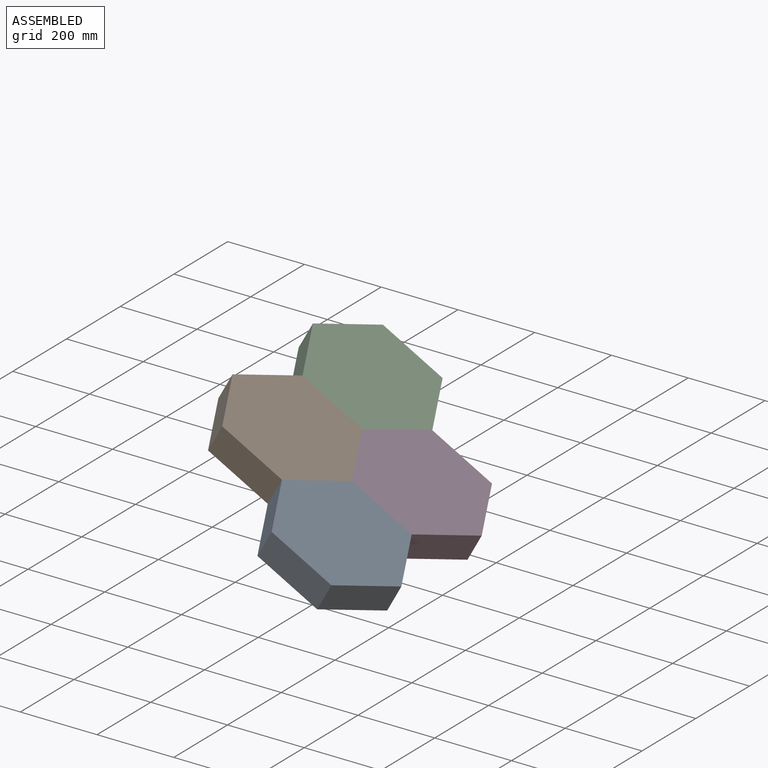
[diagram: assembled view]
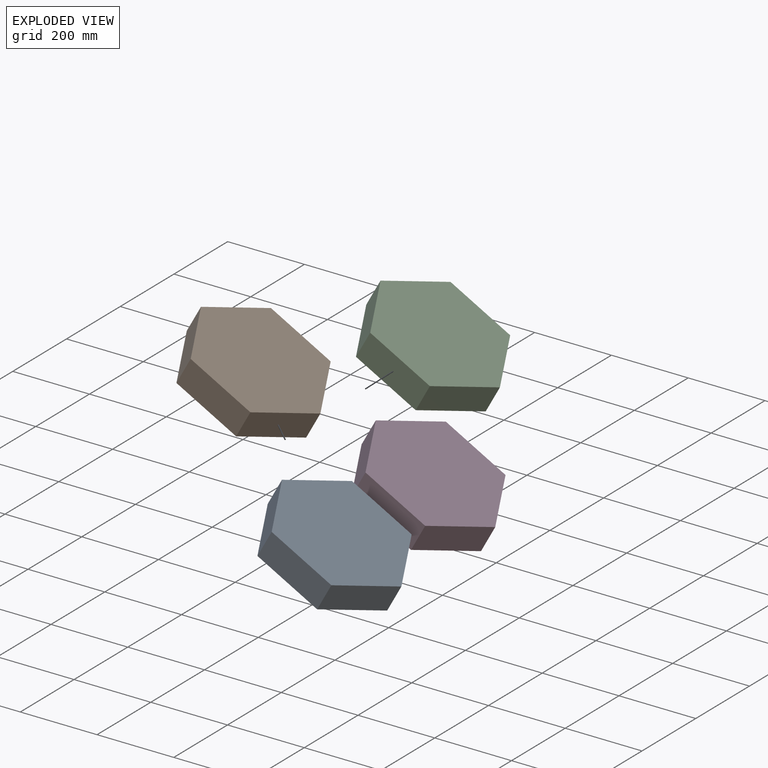
[diagram: exploded view]
GUIDED TOUR — MATED ASSEMBLY (Onshape document 0dcf16d9afe4eb14ad76084d, AutoMate assembly 0dcf16d9afe4eb14ad76084d_eabbf6c5362d463b5edfe98a_f4b00014ea0a3289594aee3d_default)

This assembly has 4 components, labeled P0..P3 below (a component is one placed occurrence of a part; the same part can appear more than once), held together by 3 mates. A mate is a constraint between two components; its type names the relative motion it leaves free:
  FASTENED — locks the two components together rigidly (no relative motion).
Axis/direction vectors are unit vectors and 'through' points are millimeter coordinates, both in the assembly's world frame.

MATES
  1. FASTENED "Fastened 2": P1 <-> P0, direction (0.763, -0.487, -0.425) through (379.78, -378.99, 186.70) mm
  2. FASTENED "Fastened 1": P3 <-> P0, direction (0.013, -1.000, -0.007) through (494.04, -300.78, 123.04) mm
  3. FASTENED "Fastened 3": P1 <-> P2, direction (-0.013, 1.000, 0.007) through (261.44, -152.44, 252.63) mm

ASSEMBLY ORDER
  1. P2 — the base component [order verified]
  2. P1 [order verified]
  3. P3 [order verified]
  4. P0 [order verified]
Order-tag legend:
  [order verified] — this step's position reverses a verified removal order: the component was checked to insert without passing through the ones already placed.

Of the 4 components, 4 carry the full construction recipe — the FeatureScript program that regenerates the part's solid from scratch; the rest are supplied as boundary geometry only.
Each toured component is shown spotlighted twice — in the assembled view, then in the exploded view, where a leader line traces a displaced component back to its assembled socket (saturated green if recipe-attached, orange if geometry-only; every other component desaturated gray) — followed by its recipe or geometry summary and the mates that hold it.
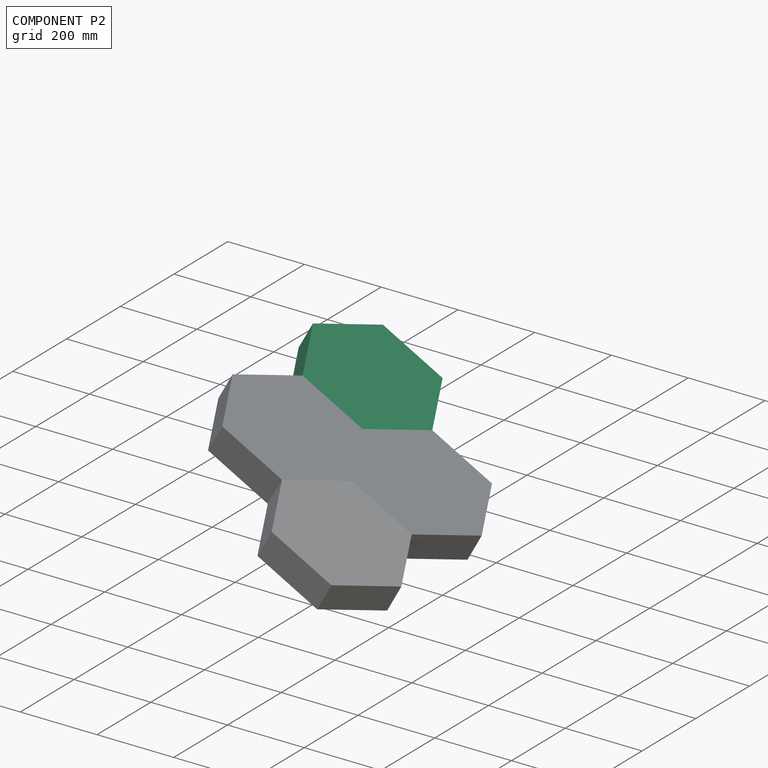
[diagram: component P2 — assembled]
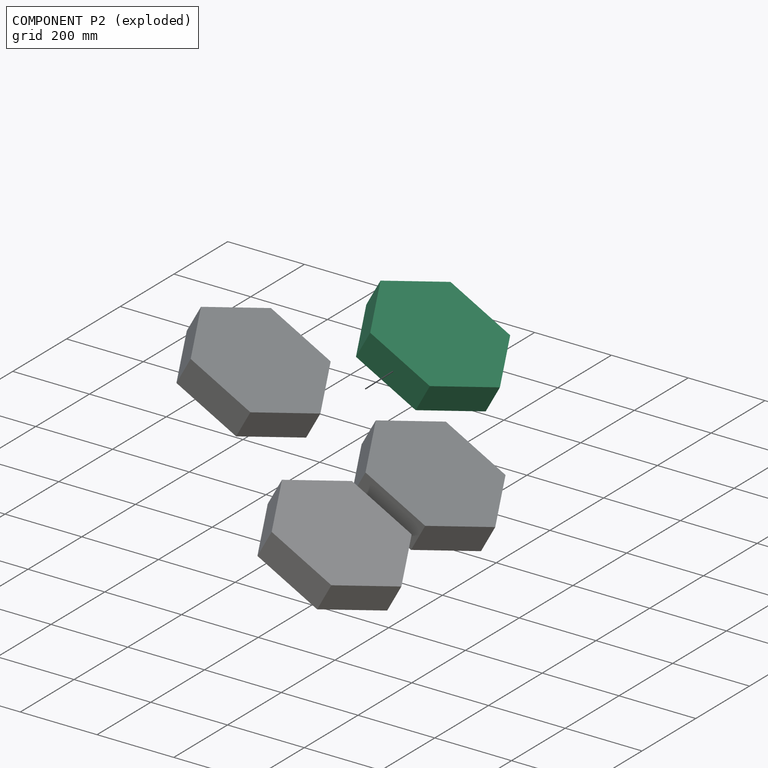
[diagram: component P2 — exploded]
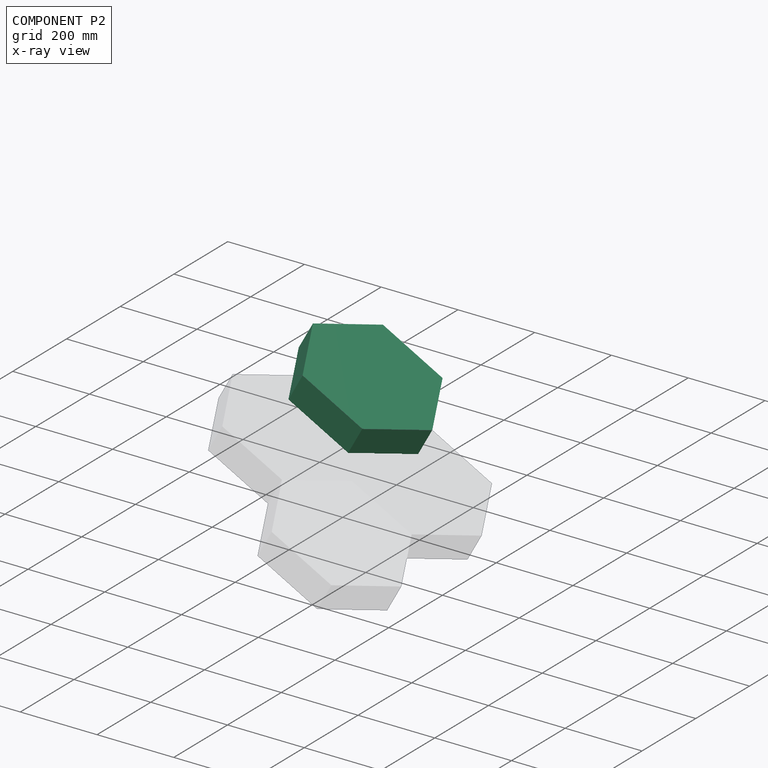
[diagram: component P2 — x-ray view]
COMPONENT P2 — same part as P0 (CADFS 00362060); its construction recipe is shown at P0.
Held by: FASTENED mate "Fastened 3" to P1.
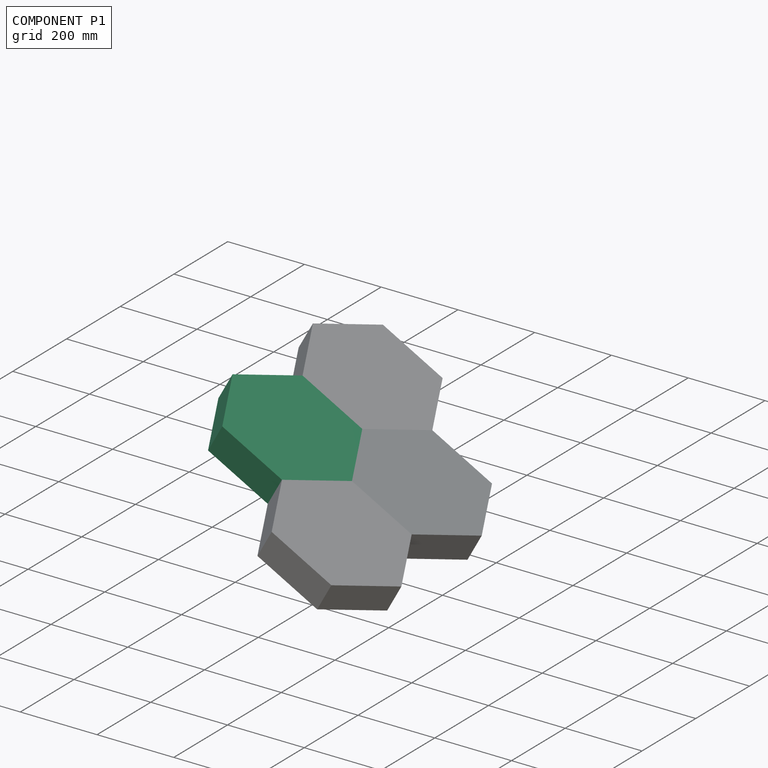
[diagram: component P1 — assembled]
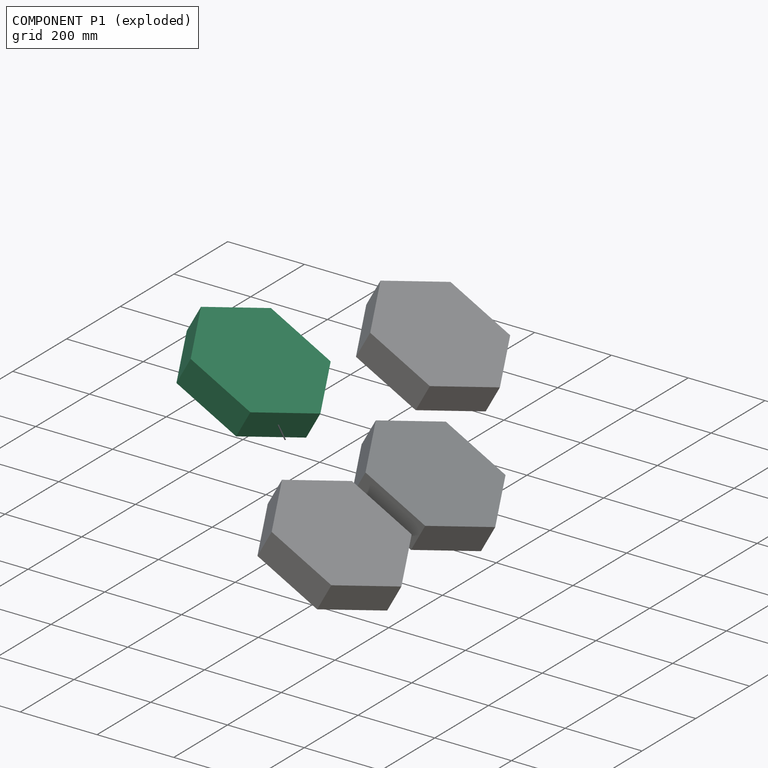
[diagram: component P1 — exploded]
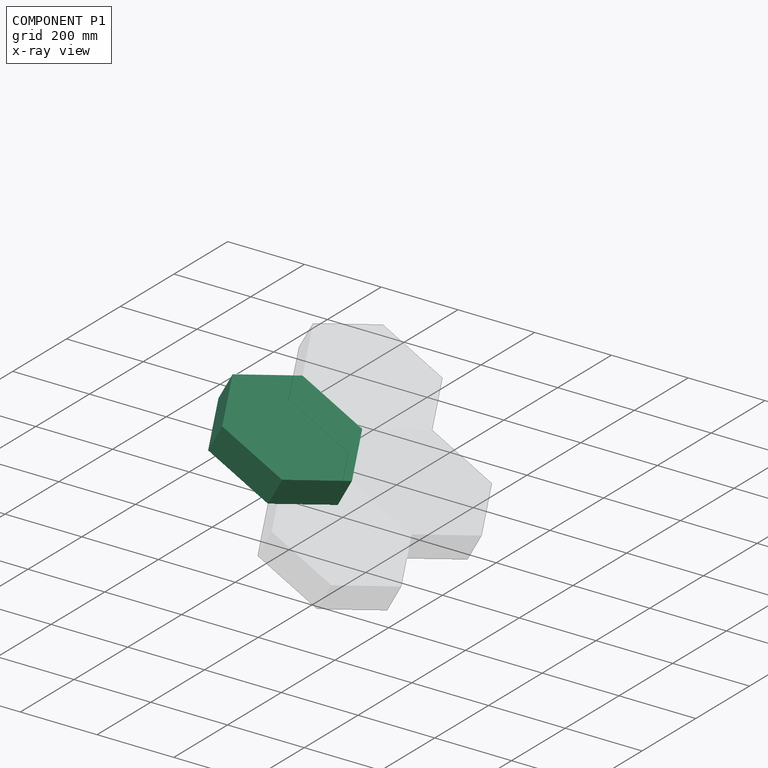
[diagram: component P1 — x-ray view]
COMPONENT P1 — same part as P0 (CADFS 00362060); its construction recipe is shown at P0.
Held by: FASTENED mate "Fastened 2" to P0; FASTENED mate "Fastened 3" to P2.
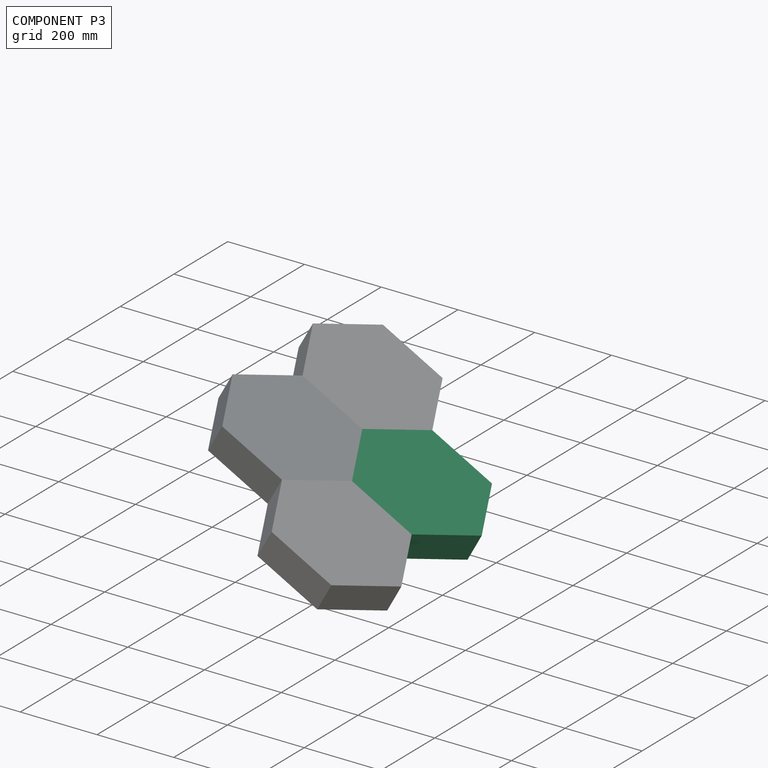
[diagram: component P3 — assembled]
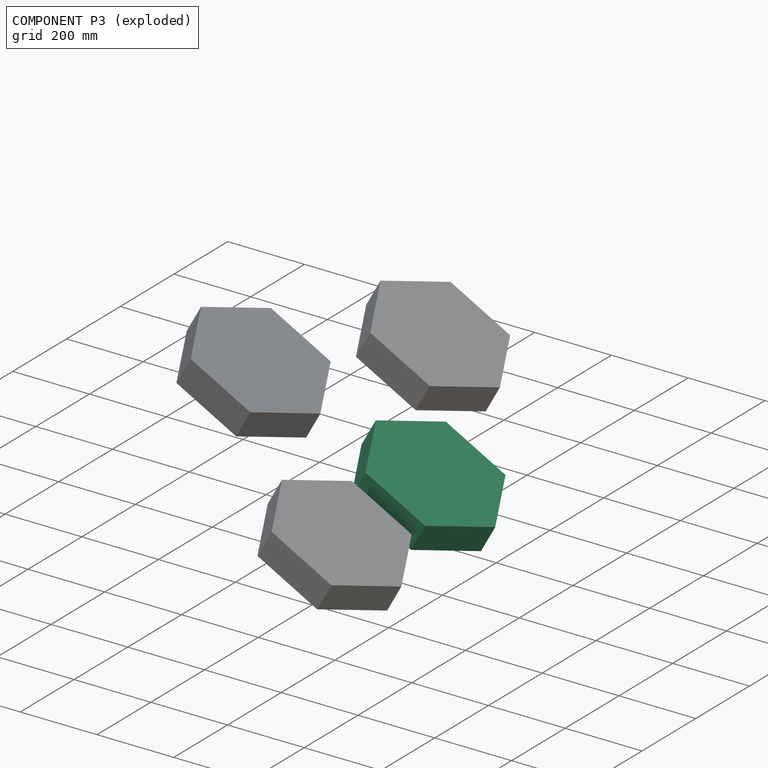
[diagram: component P3 — exploded]
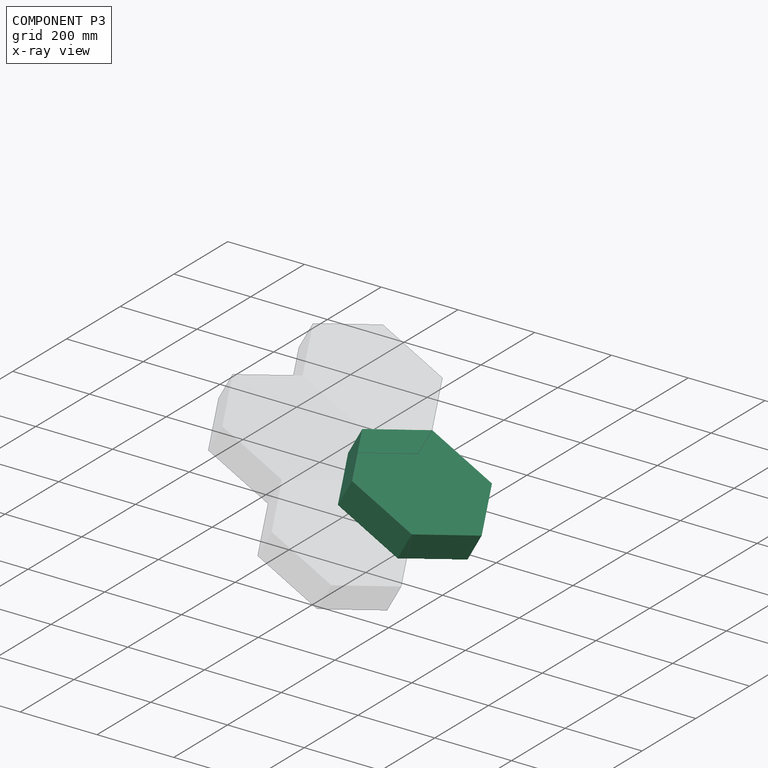
[diagram: component P3 — x-ray view]
COMPONENT P3 — same part as P0 (CADFS 00362060); its construction recipe is shown at P0.
Held by: FASTENED mate "Fastened 1" to P0.
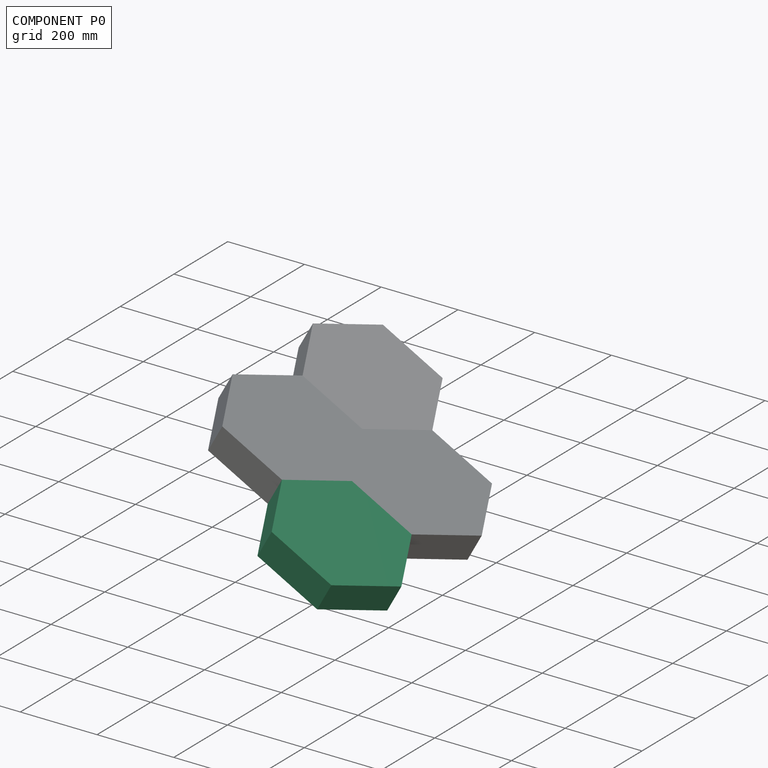
[diagram: component P0 — assembled]
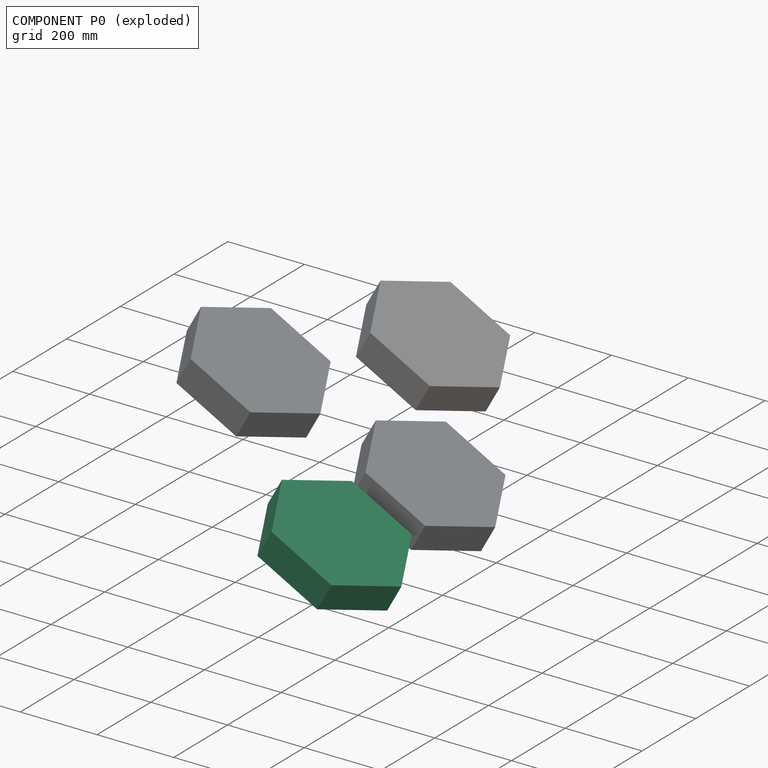
[diagram: component P0 — exploded]
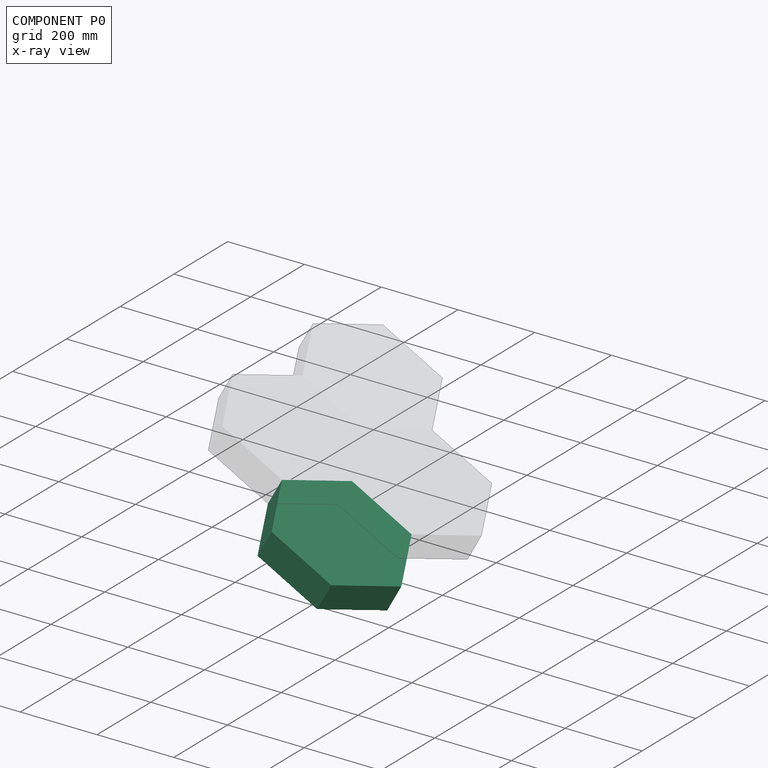
[diagram: component P0 — x-ray view]
COMPONENT P0 — recipe-attached (CADFS 00362060, mesh-verified: the recipe's output STEP matches this component's geometry to below the mesh-comparison resolution (tessellation chordal tolerance ~0.71 mm)).
Held by: FASTENED mate "Fastened 2" to P1; FASTENED mate "Fastened 1" to P3.
Construction recipe (FeatureScript — the CAD program that rebuilds this solid; sketch coordinates are in the units given by the * unit suffixes, e.g. mm):

FeatureScript 1511;
import(path : "onshape/std/geometry.fs", version : "1511.0");
import(path : "onshape/std/common.fs", version : "1511.0");
const mm = millimeter;
const VERTEX = EntityType.VERTEX;
const EDGE = EntityType.EDGE;
const FACE = EntityType.FACE;
const BODY = EntityType.BODY;
function v(x, y){return vector(x, y);}
function OD(order){return orderDisambiguation(order);}
function OSD(set){return originalSetDisambiguation(set);}
function TD(topology){return topologyDisambiguation(topology);}
function TDD(query){return trueDependencyDisambiguation(query);}
function sQuery(a, b, c) {return sketchEntityQuery(a, b, c);}

annotation { "Feature Type Name" : "Feature", "Feature Type Description" : "" }
export const myFeature = defineFeature(function(context is Context, id is Id, definition is map)
    precondition{}
    {
        {
            var Q0;
            Q0=qCreatedBy(makeId("Front.planeOp"),FACE);
            var sketch = newSketch(context, id + "F0", { "sketchPlane" : qUnion([Q0])});
            skCircle(sketch, "E0", {"center": v(0, 0) * mm, "radius": 152.4 * mm});
            skCircle(sketch, "E1.cCircle", {"center": v(0, 0) * mm, "radius": 152.4 * mm, "construction": true});
            skLineSegment(sketch, "E1.0", {"start": v(-153.73, 85.65) * mm, "end": v(-2.7, 175.96) * mm});
            skLineSegment(sketch, "E1.1", {"start": v(-2.7, 175.96) * mm, "end": v(151.04, 90.31) * mm});
            skLineSegment(sketch, "E1.2", {"start": v(151.04, 90.31) * mm, "end": v(153.73, -85.65) * mm});
            skLineSegment(sketch, "E1.3", {"start": v(153.73, -85.65) * mm, "end": v(2.7, -175.96) * mm});
            skLineSegment(sketch, "E1.4", {"start": v(2.7, -175.96) * mm, "end": v(-151.04, -90.31) * mm});
            skLineSegment(sketch, "E1.5", {"start": v(-151.04, -90.31) * mm, "end": v(-153.73, 85.65) * mm});
            skPoint(sketch, "E1.0.midPoint", {"position": v(-78.21, 130.8) * mm});
            skSolve(sketch);
        }
        {
            var Q0;
            {var subQ0=sQuery(id+"F0.wireOp",EDGE,"E0");var subQ4=makeQuery(id+"F0.imprint","INTERSECT",VERTEX,{"derivedFrom":[subQ0,sQuery(id+"F0.wireOp",EDGE,"E1.1")]});Q0=makeQuery(id+"F0.imprint","IMPRINT",FACE,{"disambiguationData":[TD([[makeQuery(id+"F0.imprint","IMPRINT",EDGE,{"disambiguationData":[TD([[subQ4,1.0]])],"derivedFrom":subQ0}),1.0]])]});}
            var Q1;
            {var subQ0=sQuery(id+"F0.wireOp",EDGE,"E1.1");var subQ1=sQuery(id+"F0.wireOp",EDGE,"E0");var subQ2=makeQuery(id+"F0.imprint","INTERSECT",VERTEX,{"derivedFrom":[subQ1,subQ0]});Q1=makeQuery(id+"F0.imprint","IMPRINT",FACE,{"disambiguationData":[TD([[makeQuery(id+"F0.imprint","IMPRINT",EDGE,{"disambiguationData":[TD([[subQ2,-1.0]])],"derivedFrom":subQ1}),-1.0]])]});}
            var Q2;
            {var subQ0=sQuery(id+"F0.wireOp",EDGE,"E1.0");var subQ1=sQuery(id+"F0.wireOp",EDGE,"E0");var subQ2=makeQuery(id+"F0.imprint","INTERSECT",VERTEX,{"derivedFrom":[subQ1,subQ0]});Q2=makeQuery(id+"F0.imprint","IMPRINT",FACE,{"disambiguationData":[TD([[makeQuery(id+"F0.imprint","IMPRINT",EDGE,{"disambiguationData":[TD([[subQ2,-1.0]])],"derivedFrom":subQ1}),-1.0]])]});}
            var Q3;
            {var subQ0=sQuery(id+"F0.wireOp",EDGE,"E1.5");var subQ1=sQuery(id+"F0.wireOp",EDGE,"E0");var subQ2=makeQuery(id+"F0.imprint","INTERSECT",VERTEX,{"derivedFrom":[subQ1,subQ0]});Q3=makeQuery(id+"F0.imprint","IMPRINT",FACE,{"disambiguationData":[TD([[makeQuery(id+"F0.imprint","IMPRINT",EDGE,{"disambiguationData":[TD([[subQ2,-1.0]])],"derivedFrom":subQ1}),-1.0]])]});}
            var Q4;
            {var subQ0=sQuery(id+"F0.wireOp",EDGE,"E1.4");var subQ1=sQuery(id+"F0.wireOp",EDGE,"E0");var subQ2=makeQuery(id+"F0.imprint","INTERSECT",VERTEX,{"derivedFrom":[subQ1,subQ0]});Q4=makeQuery(id+"F0.imprint","IMPRINT",FACE,{"disambiguationData":[TD([[makeQuery(id+"F0.imprint","IMPRINT",EDGE,{"disambiguationData":[TD([[subQ2,-1.0]])],"derivedFrom":subQ1}),-1.0]])]});}
            var Q5;
            {var subQ0=sQuery(id+"F0.wireOp",EDGE,"E1.2");var subQ1=sQuery(id+"F0.wireOp",EDGE,"E0");var subQ2=makeQuery(id+"F0.imprint","INTERSECT",VERTEX,{"derivedFrom":[subQ1,subQ0]});Q5=makeQuery(id+"F0.imprint","IMPRINT",FACE,{"disambiguationData":[TD([[makeQuery(id+"F0.imprint","IMPRINT",EDGE,{"disambiguationData":[TD([[subQ2,1.0]])],"derivedFrom":subQ1}),-1.0]])]});}
            var Q6;
            {var subQ0=sQuery(id+"F0.wireOp",EDGE,"E1.1");var subQ1=sQuery(id+"F0.wireOp",EDGE,"E0");var subQ2=makeQuery(id+"F0.imprint","INTERSECT",VERTEX,{"derivedFrom":[subQ1,subQ0]});Q6=makeQuery(id+"F0.imprint","IMPRINT",FACE,{"disambiguationData":[TD([[makeQuery(id+"F0.imprint","IMPRINT",EDGE,{"disambiguationData":[TD([[subQ2,1.0]])],"derivedFrom":subQ1}),-1.0]])]});}
            extrude(context, id + "F1", {"entities" : qUnion([Q0, Q1, Q2, Q3, Q4, Q5, Q6]), "depth" : 76.2 * mm});
        }
    });
PROVENANCE & LICENSES
Assembly (occurrences, transforms, mates, per-part STEP geometry): AutoMate dataset, Zenodo record 7776208, CC0.
Construction recipes: CADFS (HuggingFace VladPyatov/CADFS, CC-BY-4.0, layered over the ABC dataset), FeatureScript reconstruction programs keyed by ABC model id.
Join: ABC meta listings map ABC model id -> Onshape documentId; within a shared document, parts are matched by geometric signature (bounding-box dims + volume at 0.1% relative tolerance, exact B-rep face/solid counts).
Verification: 4 of this assembly's 4 components carry a recipe attachment, and every attachment is mesh-verified: the CADFS STEP and the AutoMate member STEP were compared as meshes in their shared local frame (symmetric sampled-point-to-mesh distance); worst across the 4 attachments: below the mesh-comparison resolution (tessellation chordal tolerance ~0.71 mm) on a 473 mm part.
Renders: orthographic iso camera (az 35 / el 25); the floor grid conveys scale (grid pitch printed in each image; no ruler). In the exploded view each component is displaced by its stored offset vector: the offsets alone carry the explosion direction (mate normal/axis signs are not orientation cues and do not encode it), and separation distances are assigned per mate-chain, not proportionally to assembly-order depth.
